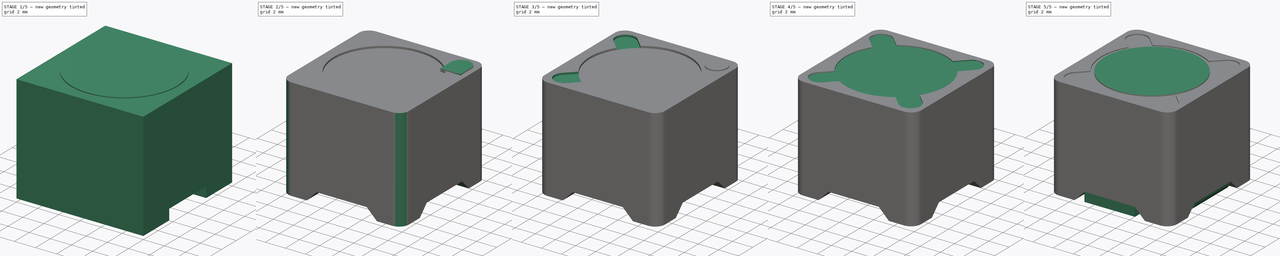
[diagram: build sequence overview — one tinted view per stage of 5, left to right]
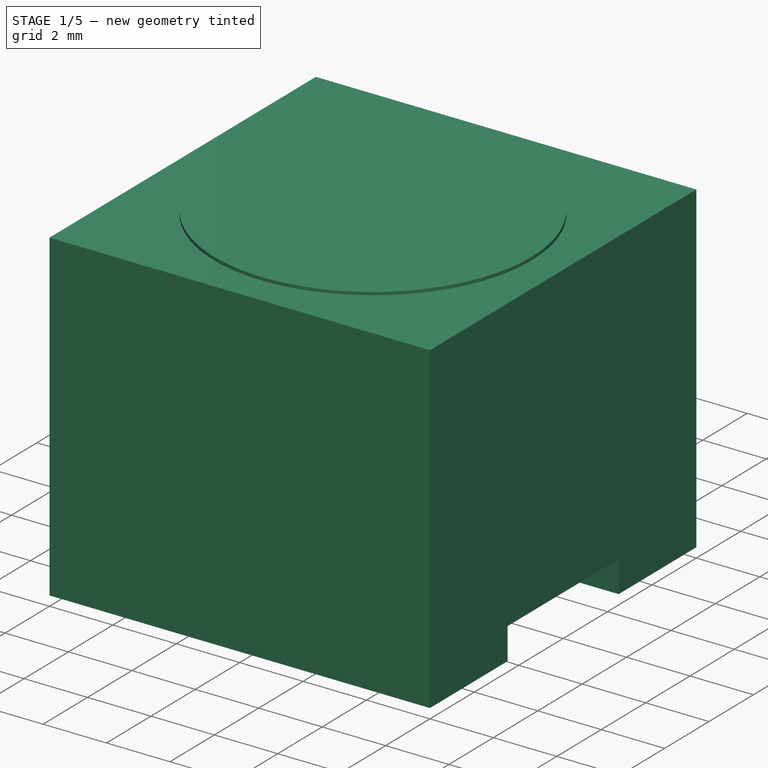
[diagram: stage 1 of 5 — iso view after this stage's code; geometry added in this stage tinted green]
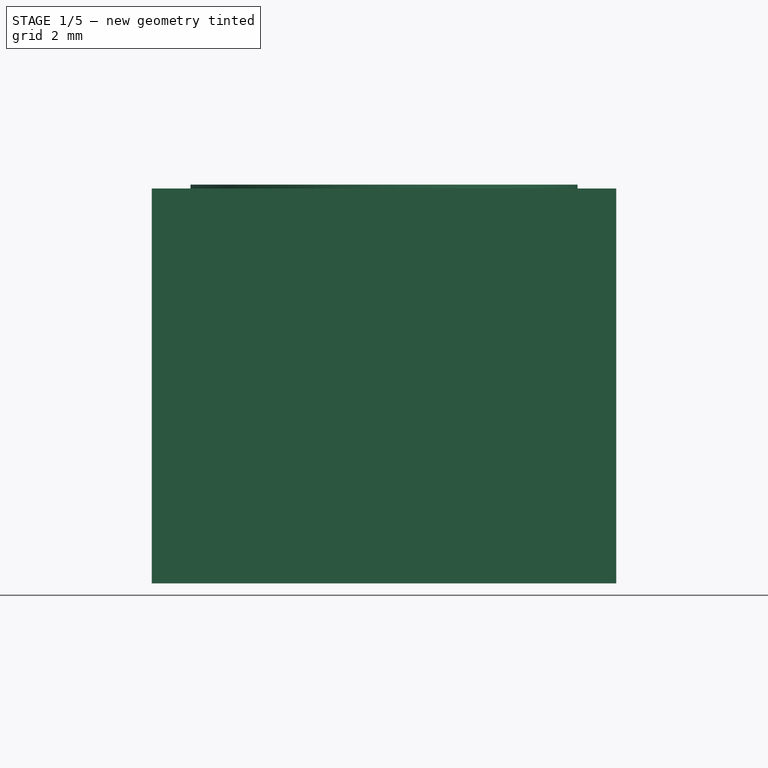
[diagram: stage 1 of 5 — front view after this stage's code; geometry added in this stage tinted green]
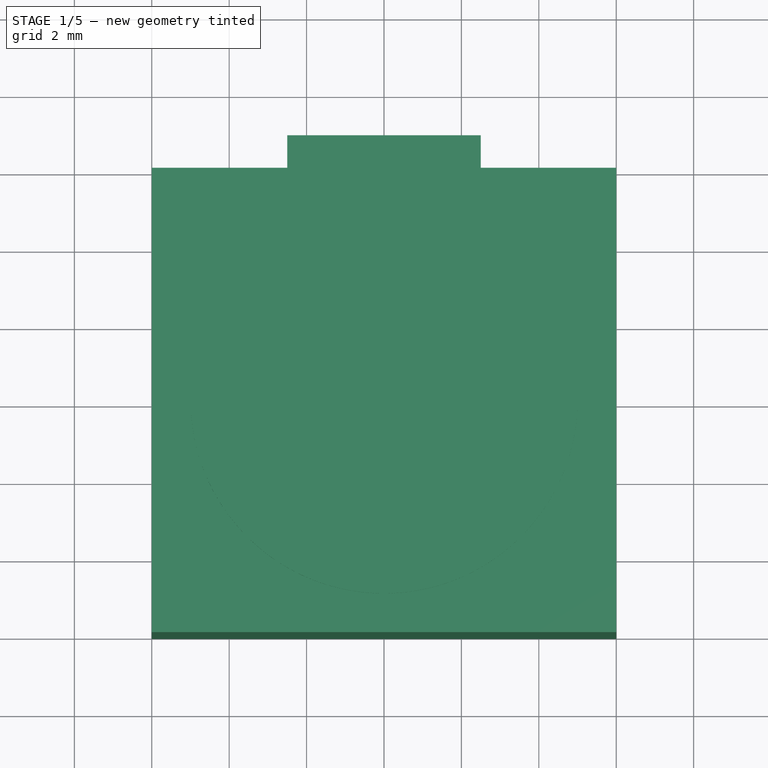
[diagram: stage 1 of 5 — top view after this stage's code; geometry added in this stage tinted green]
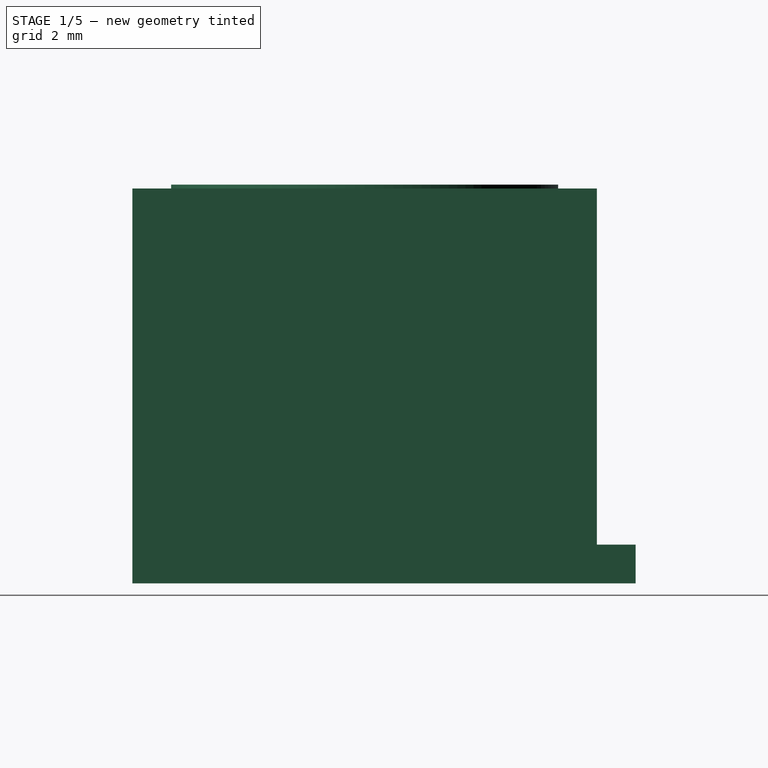
[diagram: stage 1 of 5 — right view after this stage's code; geometry added in this stage tinted green]
FCSTD DOCUMENT  (FreeCAD 0.17R11223 (Git))
Label: L_Pulse_PA4320
License: All rights reserved
LicenseURL: http://en.wikipedia.org/wiki/All_rights_reserved
objects: Part::Box×13, Part::Cut×9, Part::Cylinder×6, Part::MultiFuse×4, Part::Fillet×3, Sketcher::SketchObject×1, PartDesign::Pad×1, PartDesign::Body×1, Part::Chamfer×1
note: 40 computed .brp shape members not serialized (recipe doc carries the construction recipe); baked Part::Feature solids carry a one-line shape summary decoded from their .brp

FEATURE [Sketcher::SketchObject] Sketch
  MapMode = 5
  Support = -> [XY_Plane]
  sketch-geometry (4):
    g0: LineSegment StartX=-6 StartY=6 StartZ=0 EndX=6 EndY=6 EndZ=0
    g1: LineSegment StartX=6 StartY=6 StartZ=0 EndX=6 EndY=-6 EndZ=0
    g2: LineSegment StartX=6 StartY=-6 StartZ=0 EndX=-6 EndY=-6 EndZ=0
    g3: LineSegment StartX=-6 StartY=-6 StartZ=0 EndX=-6 EndY=6 EndZ=0
  constraints (12):
    c: Coincident(g0,g1)
    c: Coincident(g1,g2)
    c: Coincident(g2,g3)
    c: Coincident(g3,g0)
    c: Horizontal(g0)
    c: Horizontal(g2)
    c: Vertical(g1)
    c: Vertical(g3)
    c: DistanceX(g0,g0) = 12
    c: DistanceY(g1,g0) = 12
    c: DistanceY(g-1,g0) = 6
    c: DistanceX(g0,g-1) = 6
FEATURE [PartDesign::Pad] Pad
  Length = 10.2
  Length2 = 100
  Profile = -> Sketch
  Type = 0
FEATURE [PartDesign::Body] Body
  Group = -> [Sketch,Pad]
  Origin = -> BodyOrigin
  Tip = -> Pad
FEATURE [Part::Box] Box  label="Kub"
  AttacherType = Attacher::AttachEngine3D
  Height = 1
  Length = 5
  Placement = pos=(-2.5,3.5,0) rot=(0,0,1;0rad)
  Width = 3.5
FEATURE [Part::Box] Box002  label="Kub002"
  AttacherType = Attacher::AttachEngine3D
  Height = 1
  Length = 3.5
  Placement = pos=(-7,-2.5,0) rot=(0,0,1;0rad)
  Width = 5
FEATURE [Part::Box] Box003  label="Kub003"
  AttacherType = Attacher::AttachEngine3D
  Height = 1
  Length = 3.5
  Placement = pos=(3.5,-2.5,0) rot=(0,0,1;0rad)
  Width = 5
FEATURE [Part::Cut] Cut
  Base = -> Body
  Tool = -> Box003
FEATURE [Part::Cut] Cut001
  Base = -> Cut
  Tool = -> Box002
FEATURE [Part::Cylinder] Cylinder001
  Angle = 360
  AttacherType = Attacher::AttachEngine3D
  Height = 0.3
  Placement = pos=(0,0,10) rot=(0,0,1;0rad)
  Radius = 5
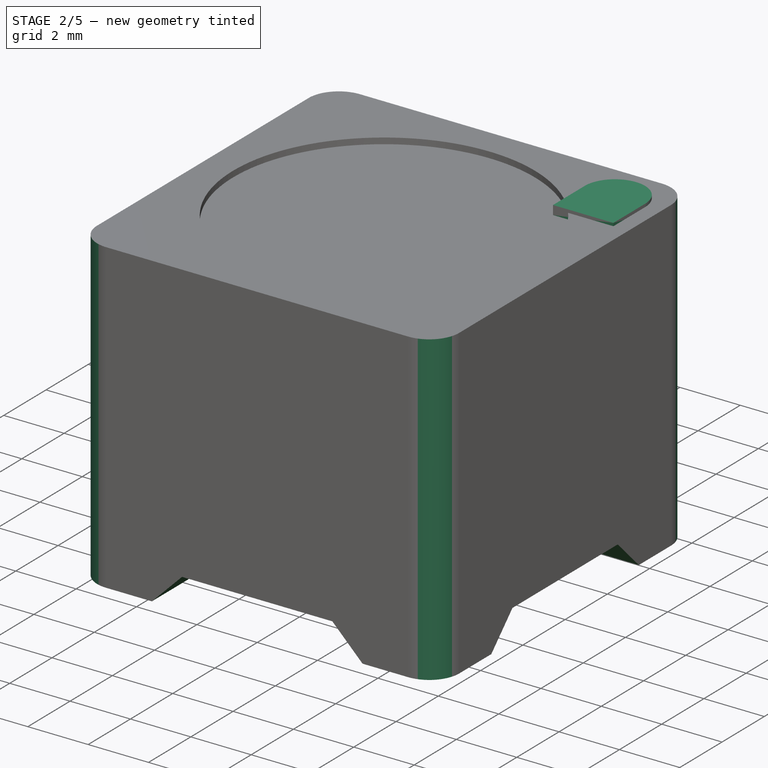
[diagram: stage 2 of 5 — iso view after this stage's code; geometry added in this stage tinted green]
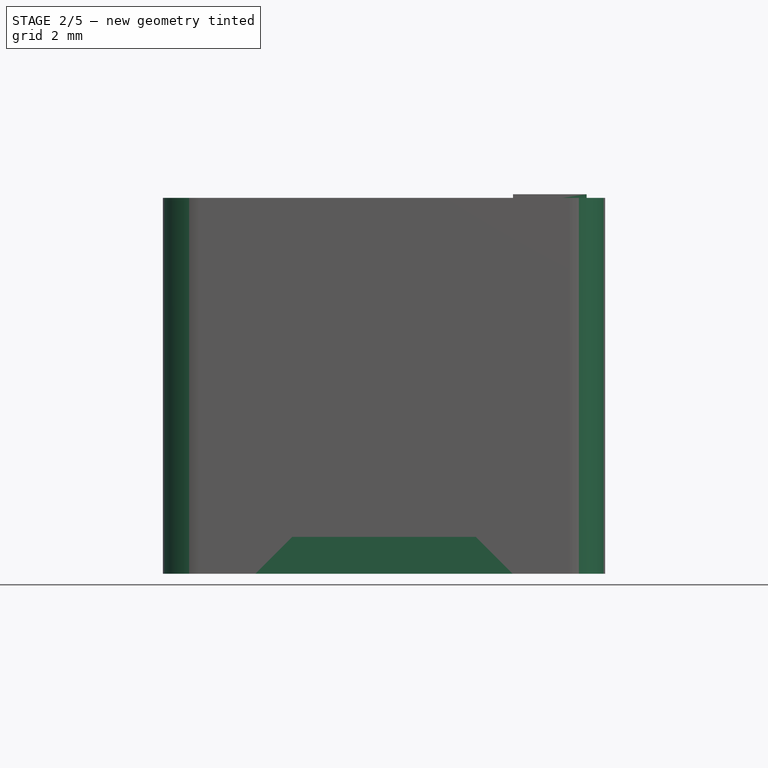
[diagram: stage 2 of 5 — front view after this stage's code; geometry added in this stage tinted green]
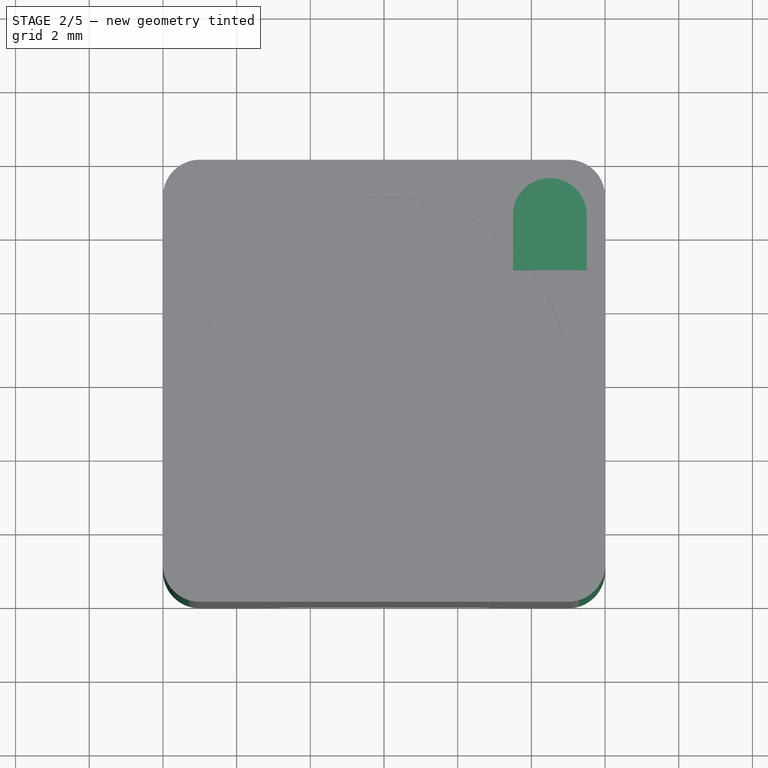
[diagram: stage 2 of 5 — top view after this stage's code; geometry added in this stage tinted green]
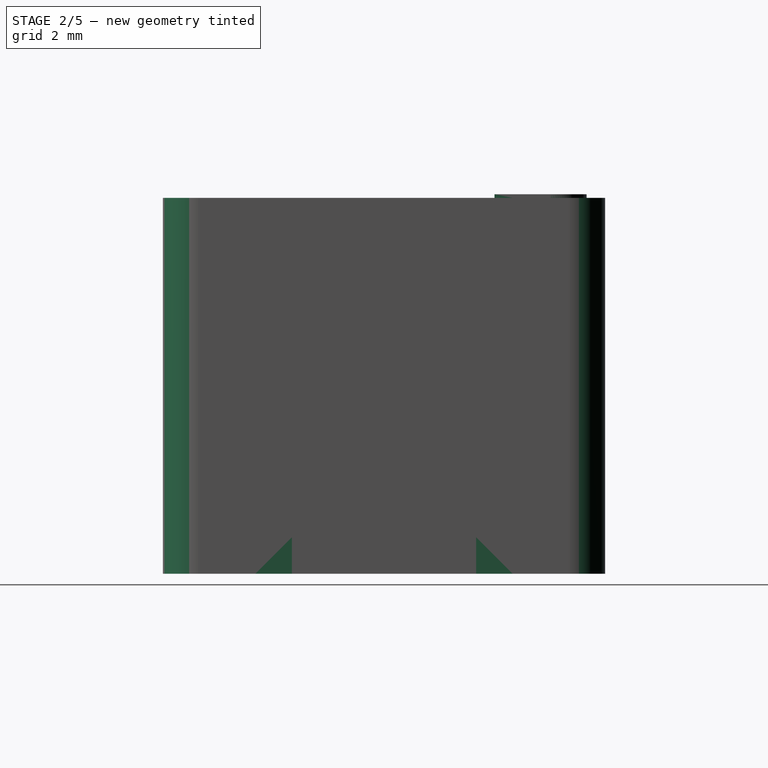
[diagram: stage 2 of 5 — right view after this stage's code; geometry added in this stage tinted green]
FEATURE [Part::Box] Box001  label="Kub001"
  AttacherType = Attacher::AttachEngine3D
  Height = 1
  Length = 5
  Placement = pos=(-2.5,-7,0) rot=(0,0,1;0rad)
  Width = 3.5
FEATURE [Part::Cut] Cut002
  Base = -> Cut001
  Tool = -> Box
FEATURE [Part::Cut] Cut003
  Base = -> Cut002
  Tool = -> Box001
FEATURE [Part::Chamfer] Chamfer
  Base = -> Cut003
  Edges = 8 edges r=0.99: [Edge9,Edge11,Edge13,Edge15,Edge17,Edge19,Edge22,Edge24]
FEATURE [Part::Fillet] Fillet002
  Base = -> Chamfer
  Edges = 4 edges r=1: [Edge3,Edge7,Edge40,Edge55]
FEATURE [Part::Box] Box010  label="Kub010"
  AttacherType = Attacher::AttachEngine3D
  Height = 0.3
  Length = 2
  Placement = pos=(3.5,3,10) rot=(0,0,1;0rad)
  Width = 1.5
FEATURE [Part::Cylinder] Cylinder008
  Angle = 360
  AttacherType = Attacher::AttachEngine3D
  Height = 0.3
  Placement = pos=(4.5,4.5,10) rot=(0,0,1;0rad)
  Radius = 1
FEATURE [Part::Cut] Cut004
  Base = -> Fillet002
  Tool = -> Cylinder001
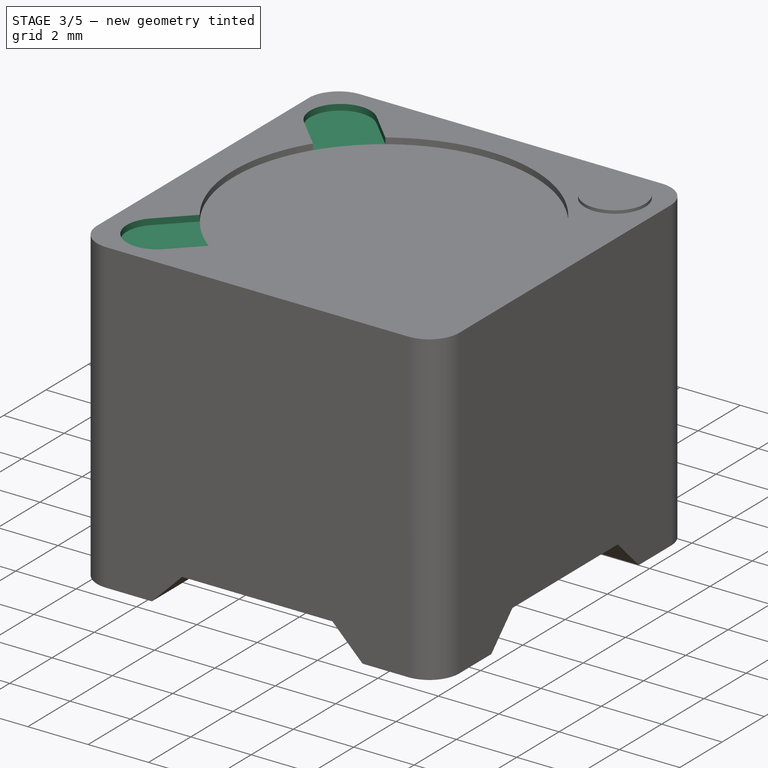
[diagram: stage 3 of 5 — iso view after this stage's code; geometry added in this stage tinted green]
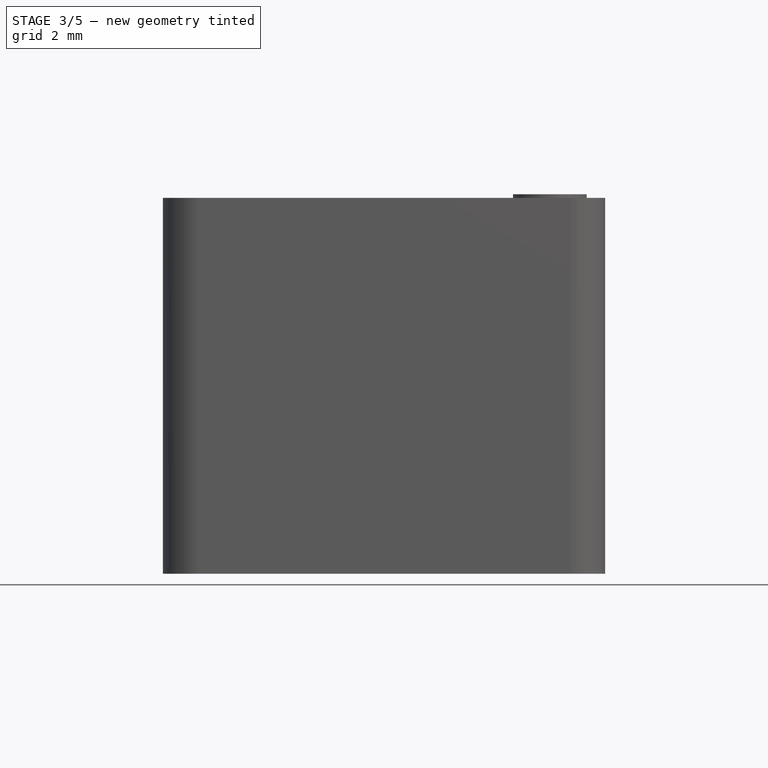
[diagram: stage 3 of 5 — front view after this stage's code; geometry added in this stage tinted green]
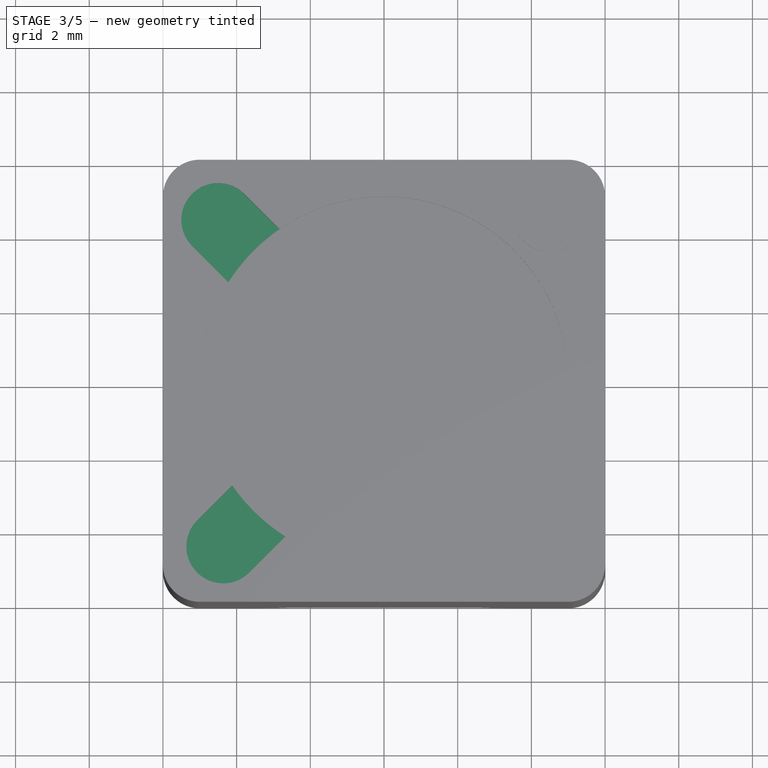
[diagram: stage 3 of 5 — top view after this stage's code; geometry added in this stage tinted green]
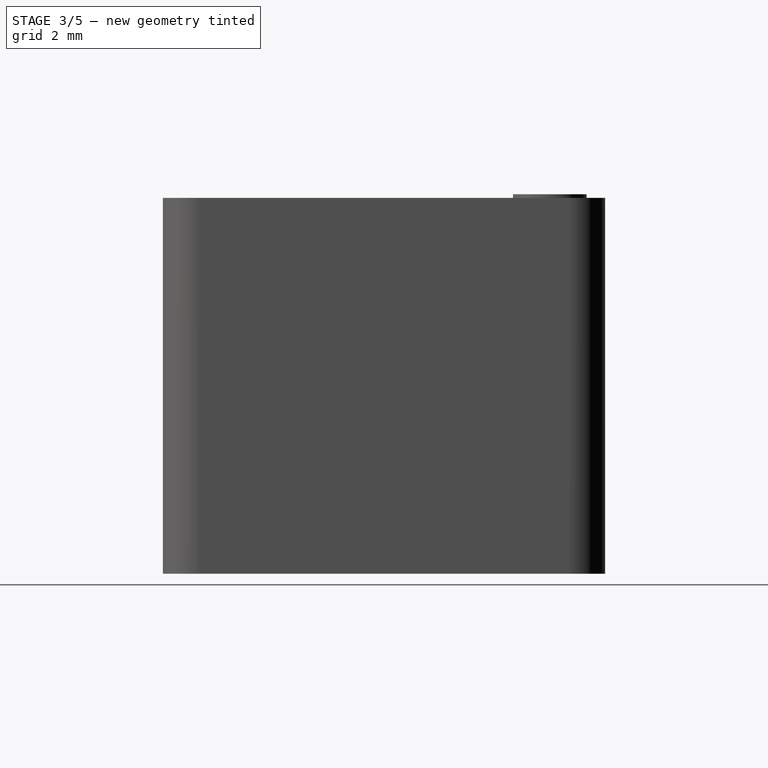
[diagram: stage 3 of 5 — right view after this stage's code; geometry added in this stage tinted green]
FEATURE [Part::Cylinder] Cylinder006
  Angle = 360
  AttacherType = Attacher::AttachEngine3D
  Height = 0.3
  Placement = pos=(4.5,4.5,10) rot=(0,0,1;0rad)
  Radius = 1
FEATURE [Part::MultiFuse] Fusion002
  Placement = pos=(-4.5,-2,0) rot=(0,0,1;0.785398rad)
  Shapes = -> [Cylinder008,Box010]
FEATURE [Part::Box] Box011  label="Kub011"
  AttacherType = Attacher::AttachEngine3D
  Height = 0.3
  Length = 2
  Placement = pos=(3.5,3,10) rot=(0,0,1;0rad)
  Width = 1.5
FEATURE [Part::Cylinder] Cylinder009
  Angle = 360
  AttacherType = Attacher::AttachEngine3D
  Height = 0.3
  Placement = pos=(4.5,4.5,10) rot=(0,0,1;0rad)
  Radius = 1
FEATURE [Part::MultiFuse] Fusion003
  Placement = pos=(2,-4.5,0) rot=(0,0,1;2.35619rad)
  Shapes = -> [Cylinder009,Box011]
FEATURE [Part::Cut] Cut005
  Base = -> Cut004
  Tool = -> Fusion002
FEATURE [Part::Cut] Cut006
  Base = -> Cut005
  Tool = -> Fusion003
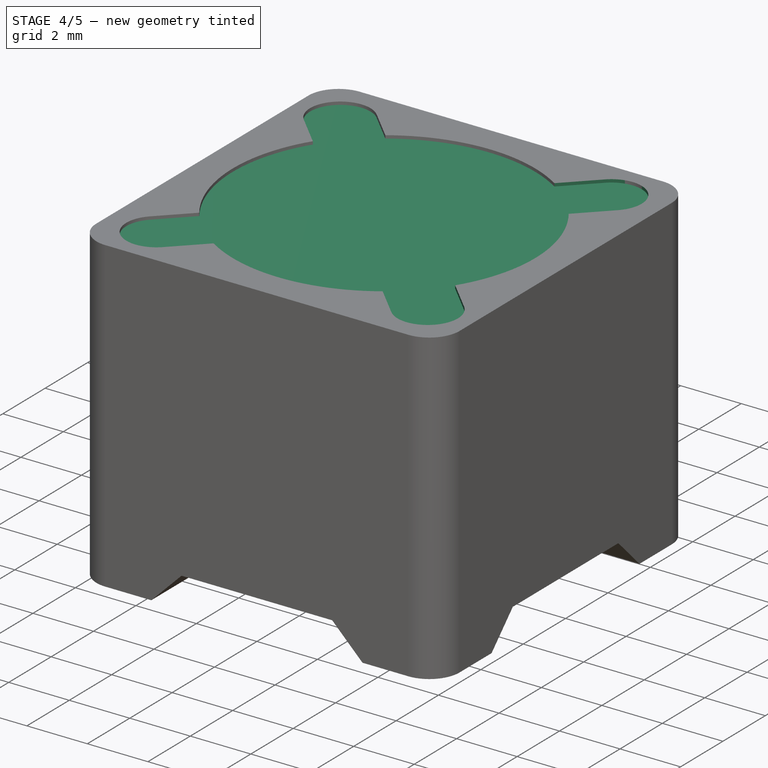
[diagram: stage 4 of 5 — iso view after this stage's code; geometry added in this stage tinted green]
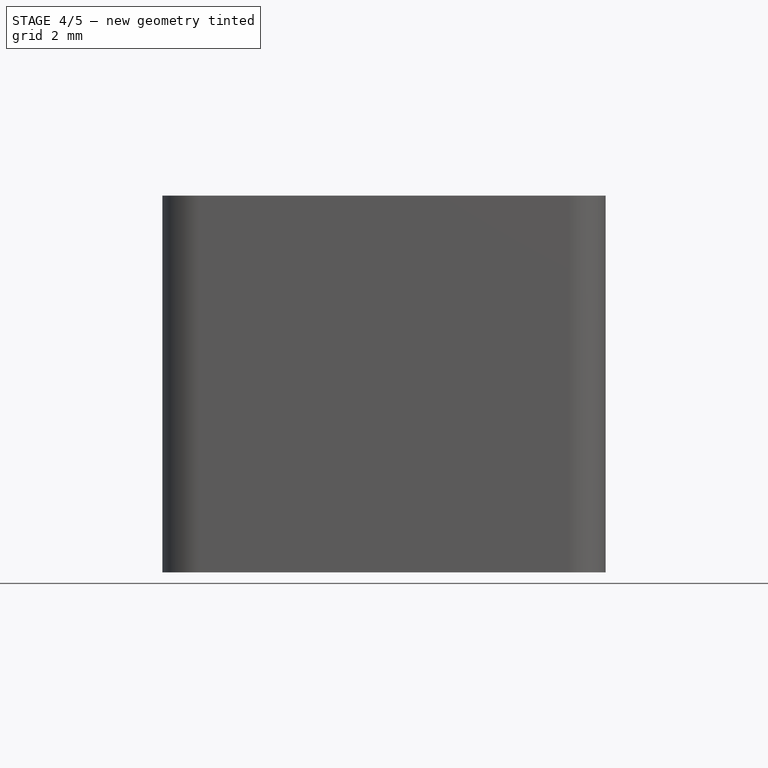
[diagram: stage 4 of 5 — front view after this stage's code; geometry added in this stage tinted green]
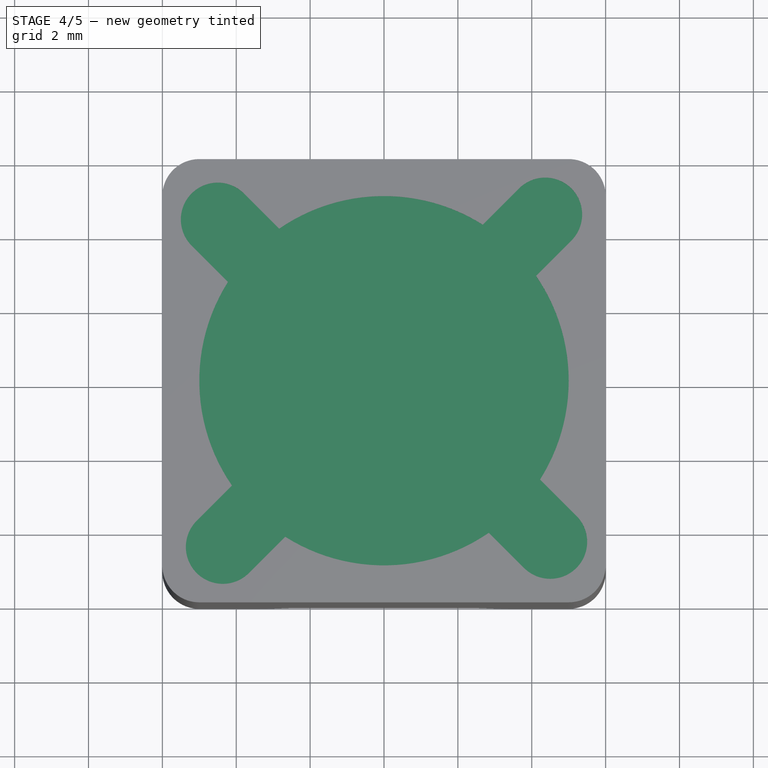
[diagram: stage 4 of 5 — top view after this stage's code; geometry added in this stage tinted green]
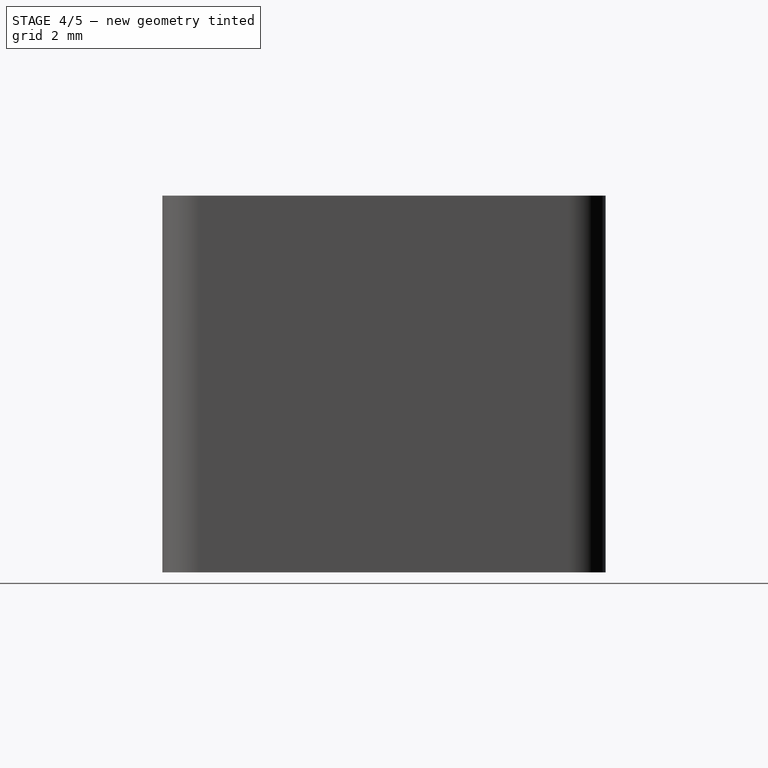
[diagram: stage 4 of 5 — right view after this stage's code; geometry added in this stage tinted green]
FEATURE [Part::Box] Box008  label="Kub008"
  AttacherType = Attacher::AttachEngine3D
  Height = 0.3
  Length = 2
  Placement = pos=(3.5,3,10) rot=(0,0,1;0rad)
  Width = 1.5
FEATURE [Part::MultiFuse] Fusion
  Placement = pos=(-2,4.5,0) rot=(0,0,-1;0.785398rad)
  Shapes = -> [Cylinder006,Box008]
FEATURE [Part::Box] Box009  label="Kub009"
  AttacherType = Attacher::AttachEngine3D
  Height = 0.3
  Length = 2
  Placement = pos=(3.5,3,10) rot=(0,0,1;0rad)
  Width = 1.5
FEATURE [Part::Cylinder] Cylinder007
  Angle = 360
  AttacherType = Attacher::AttachEngine3D
  Height = 0.3
  Placement = pos=(4.5,4.5,10) rot=(0,0,1;0rad)
  Radius = 1
FEATURE [Part::MultiFuse] Fusion001
  Placement = pos=(4.5,2,0) rot=(0,0,1;3.92699rad)
  Shapes = -> [Cylinder007,Box009]
FEATURE [Part::Cut] Cut007
  Base = -> Cut006
  Tool = -> Fusion
FEATURE [Part::Box] Box012  label="Kub012"
  AttacherType = Attacher::AttachEngine3D
  Height = 0.1
  Length = 11
  Placement = pos=(-5.5,-5.5,10) rot=(0,0,1;0rad)
  Width = 11
FEATURE [Part::Cut] Cut008
  Base = -> Cut007
  Tool = -> Fusion001
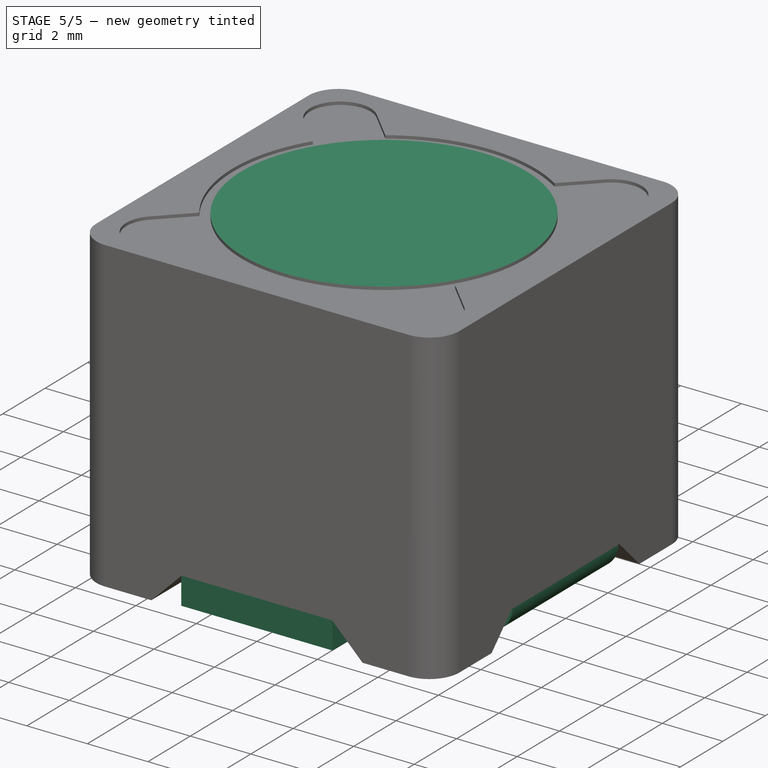
[diagram: stage 5 of 5 — iso view after this stage's code; geometry added in this stage tinted green]
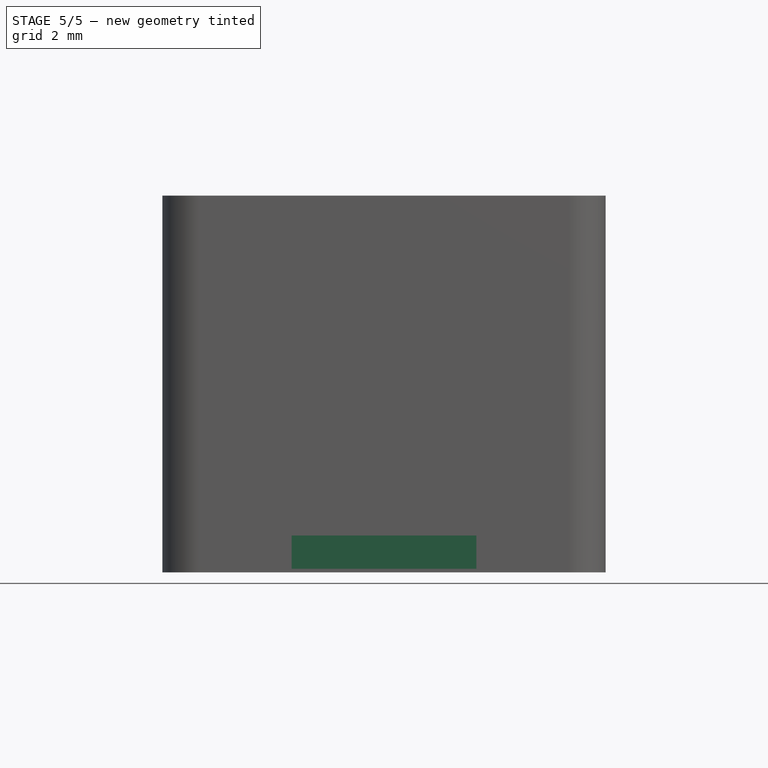
[diagram: stage 5 of 5 — front view after this stage's code; geometry added in this stage tinted green]
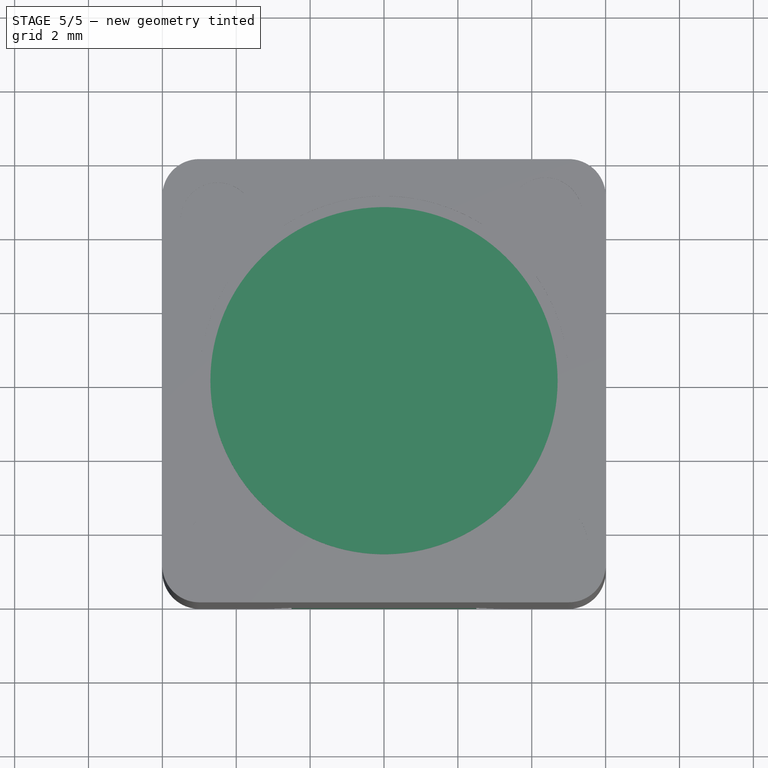
[diagram: stage 5 of 5 — top view after this stage's code; geometry added in this stage tinted green]
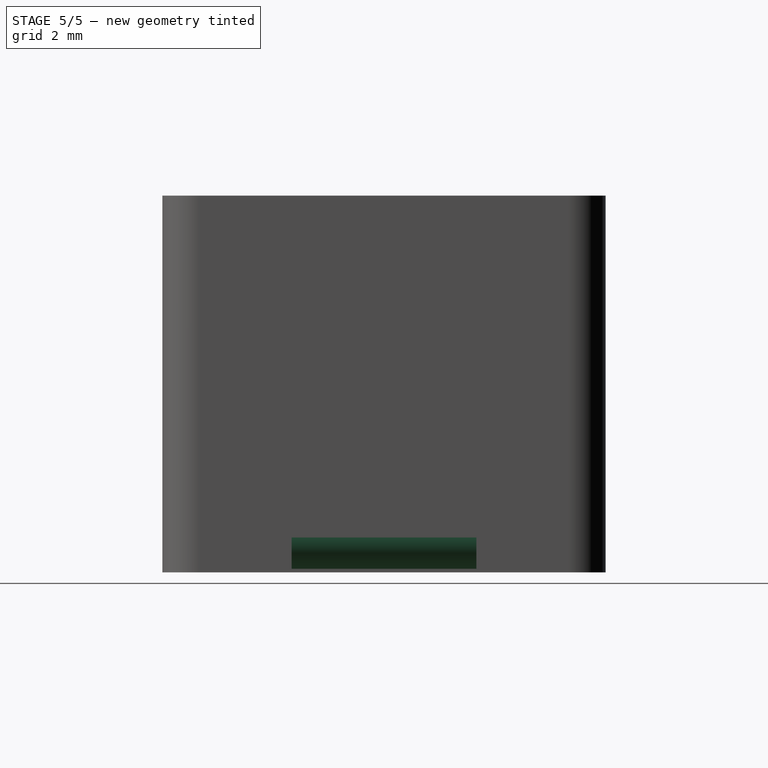
[diagram: stage 5 of 5 — right view after this stage's code; geometry added in this stage tinted green]
FEATURE [Part::Box] Box004  label="Kub004"
  AttacherType = Attacher::AttachEngine3D
  Height = 0.9
  Length = 5
  Placement = pos=(1,-2.5,0.1) rot=(0,0,1;0rad)
  Width = 5
FEATURE [Part::Box] Box005  label="Kub005"
  AttacherType = Attacher::AttachEngine3D
  Height = 0.9
  Length = 5
  Placement = pos=(-6,-2.5,0.1) rot=(0,0,1;0rad)
  Width = 5
FEATURE [Part::Box] Box006  label="Kub006"
  AttacherType = Attacher::AttachEngine3D
  Height = 0.9
  Length = 5
  Placement = pos=(-2.5,1,0.1) rot=(0,0,1;0rad)
  Width = 5
FEATURE [Part::Box] Box007  label="Kub007"
  AttacherType = Attacher::AttachEngine3D
  Height = 0.9
  Length = 5
  Placement = pos=(-2.5,-6,0.1) rot=(0,0,1;0rad)
  Width = 5
FEATURE [Part::Fillet] Fillet
  Base = -> Box005
  Edges = 1 edges r=0.89: [Edge4]
FEATURE [Part::Fillet] Fillet003
  Base = -> Box004
  Edges = 1 edges r=0.89: [Edge8]
FEATURE [Part::Cylinder] Cylinder002
  Angle = 360
  AttacherType = Attacher::AttachEngine3D
  Height = 0.3
  Placement = pos=(0,0,9.9) rot=(0,0,1;0rad)
  Radius = 4.7
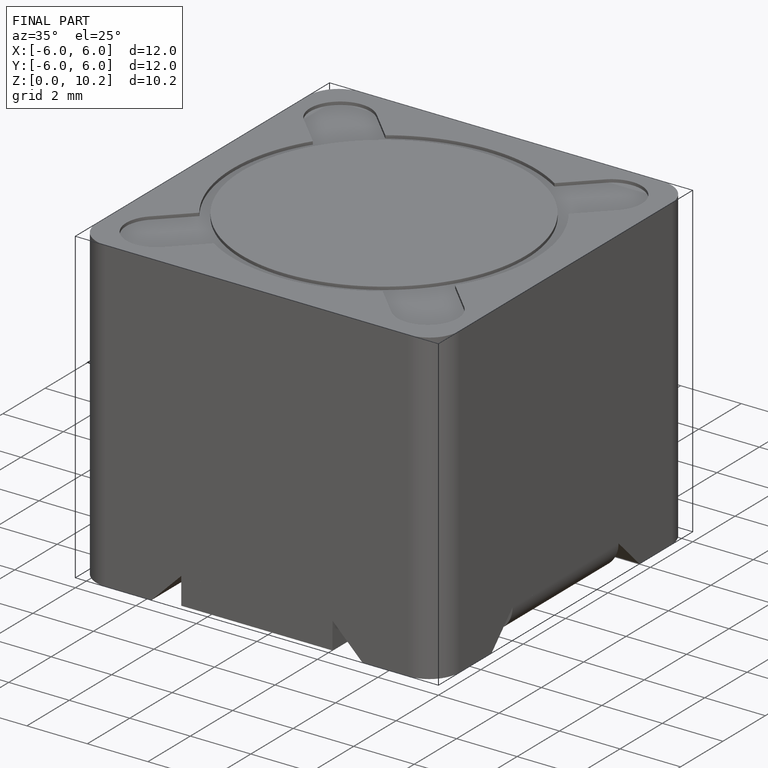
[diagram: finished part — iso view with bounding-box wireframe]
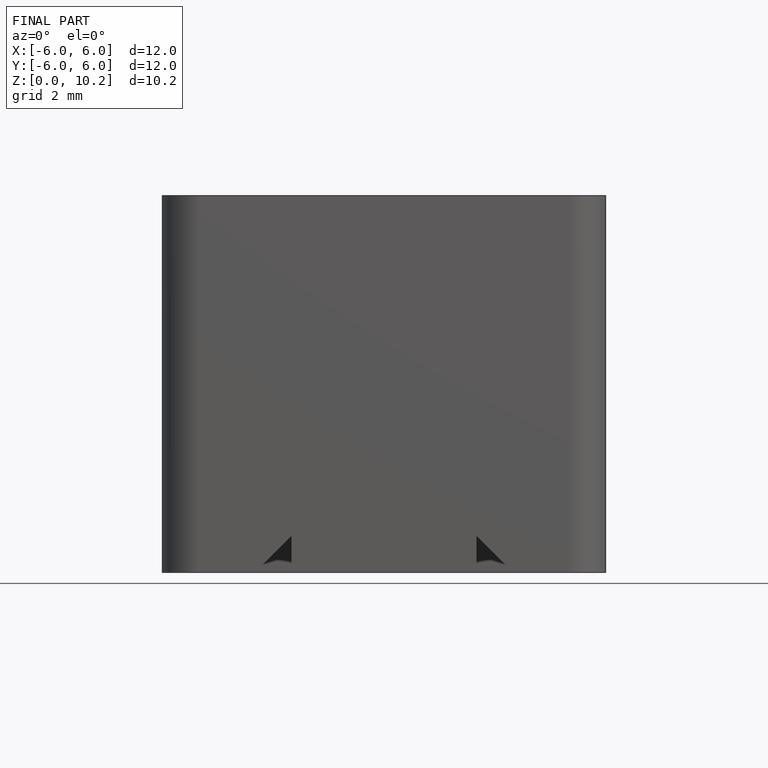
[diagram: finished part — front view with bounding-box wireframe]
